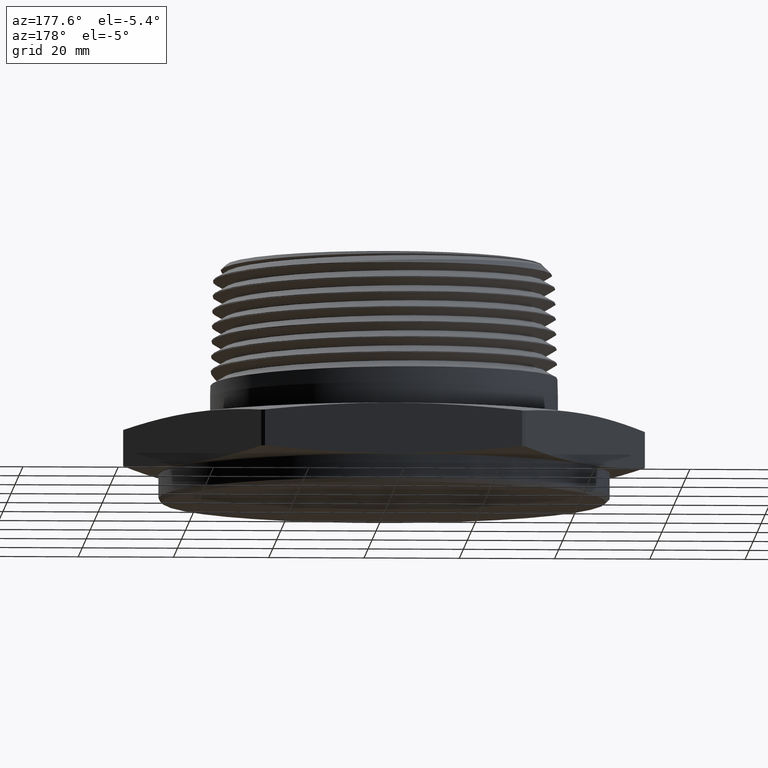
[diagram: clean part render]
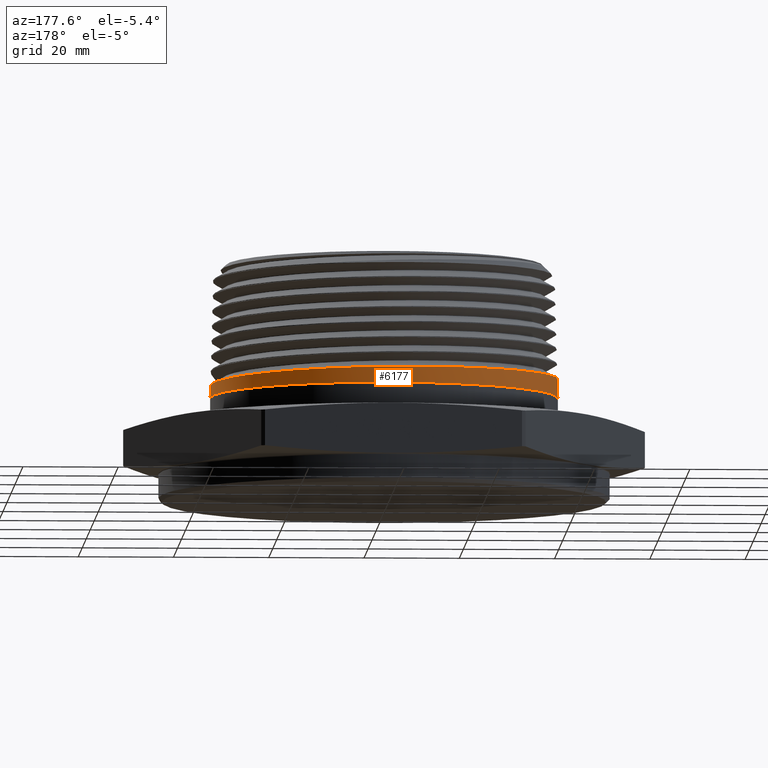
[diagram: same view with one face highlighted and labeled with its STEP entity id]
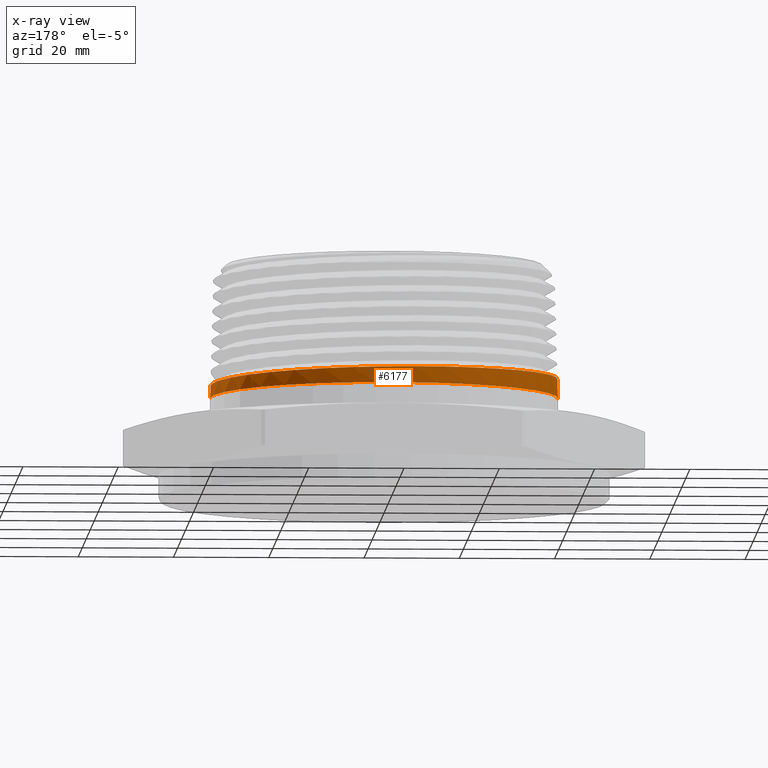
[diagram: x-ray of the same camera — body ghosted, the highlighted face saturated]
A machine part, auxiliary view. The second image highlights one B-rep face of the part: STEP entity #6177.
The next image is the same camera in x-ray: the body ghosted, the highlighted face saturated — about 0% of this face is hidden behind the body in this view.
In plain terms, the highlighted conical surface has half-angle 1.47 deg.
Its self-contained STEP definition (entity closure, byte-faithful):
#826 = B_SPLINE_CURVE_WITH_KNOTS ( 'NONE', 3,
 ( #6354, #6351, #6357, #6358, #6359, #6360, #6361, #6362, #6363, #6364, #6365, #6366, #6367, #6368, #6369, #6370, #6371, #6372, #6373, #6374, #6375, #6376, #6377, #6378, #6379, #6380, #6381, #6382, #6383, #6384, #6385, #6386, #6387, #6388, #6389, #6390, #6391, #6392, #6393, #6394, #6395, #6396, #6397, #6398, #6399, #6400, #6401, #6402, #6403, #6404, #6405, #6406, #6407, #6408, #6409, #6410, #6411, #6412, #6413, #6414, #6415, #6416, #6417, #6418 ),
 .UNSPECIFIED., .F., .F.,
 ( 4, 2, 2, 2, 2, 2, 2, 2, 2, 2, 2, 2, 2, 2, 2, 2, 2, 2, 2, 2, 2, 2, 2, 2, 2, 2, 2, 2, 2, 2, 2, 4 ),
 ( 1.526168335811242300, 1.533364398320368200, 1.535163413947649500, 1.536962429574930900, 1.540560460829493800, 1.544158492084056800, 1.545957507711338100, 1.547756523338619700, 1.554952585847745300, 1.558550617102308200, 1.560349632729589800, 1.562148648356871200, 1.569344710865997000, 1.571143726493278400, 1.572942742120560000, 1.576540773375122700, 1.583736835884248500, 1.585535851511530100, 1.587334867138811400, 1.590932898393374400, 1.594530929647937300, 1.598128960902500200, 1.605325023411626100, 1.608923054666189000, 1.612521085920751900, 1.619717148429877600, 1.623315179684440500, 1.626913210939003400, 1.630511242193566400, 1.632310257820847900, 1.634109273448129300, 1.641305335957255100 ),
 .UNSPECIFIED. ) ;
#1208 = EDGE_LOOP ( 'NONE', ( #6811, #6812, #6813, #6814 ) ) ;
#1427 = CARTESIAN_POINT ( 'NONE',  ( 0.0000000000000000000, 0.0000000000000000000, 0.6297337689372655100 ) ) ;
#1428 = DIRECTION ( 'NONE',  ( 0.0000000000000000000, 0.0000000000000000000, 1.000000000000000000 ) ) ;
#1429 = DIRECTION ( 'NONE',  ( -1.000000000000000000, 0.0000000000000000000, 0.0000000000000000000 ) ) ;
#1969 = LINE ( 'NONE', #6327, #1971 ) ;
#1971 = VECTOR ( 'NONE', #6352, 39.37007874015748100 ) ;
#1972 = LINE ( 'NONE', #6328, #1974 ) ;
#1974 = VECTOR ( 'NONE', #6353, 39.37007874015748100 ) ;
#2048 = CIRCLE ( 'NONE', #5655, 1.437500000000000000 ) ;
#2105 = VERTEX_POINT ( 'NONE', #2108 ) ;
#2106 = VERTEX_POINT ( 'NONE', #2109 ) ;
#2108 = CARTESIAN_POINT ( 'NONE',  ( 1.437500000000000000, 1.760429773774320200E-016, 0.6297337689372655100 ) ) ;
#2109 = CARTESIAN_POINT ( 'NONE',  ( -1.437500000000000000, 0.0000000000000000000, 0.6297337689372655100 ) ) ;
#2656 = FACE_OUTER_BOUND ( 'NONE', #1208, .T. ) ;
#2661 = CONICAL_SURFACE ( 'NONE', #5581, 1.442132072348257100, 0.02565634000430878200 ) ;
#4869 = VERTEX_POINT ( 'NONE', #6737 ) ;
#4870 = VERTEX_POINT ( 'NONE', #6724 ) ;
#5581 = AXIS2_PLACEMENT_3D ( 'NONE', #5687, #5688, #5686 ) ;
#5655 = AXIS2_PLACEMENT_3D ( 'NONE', #1427, #1428, #1429 ) ;
#5686 = DIRECTION ( 'NONE',  ( -1.000000000000000000, 0.0000000000000000000, 0.0000000000000000000 ) ) ;
#5687 = CARTESIAN_POINT ( 'NONE',  ( 0.0000000000000000000, 0.0000000000000000000, 0.4492303942382361300 ) ) ;
#5688 = DIRECTION ( 'NONE',  ( -0.0000000000000000000, -0.0000000000000000000, -1.000000000000000000 ) ) ;
#6177 = ADVANCED_FACE ( 'NONE', ( #2656 ), #2661, .T. ) ;
#6327 = CARTESIAN_POINT ( 'NONE',  ( -1.442132072348257100, 0.0000000000000000000, 0.4492303942382361300 ) ) ;
#6328 = CARTESIAN_POINT ( 'NONE',  ( 1.442132072348257100, 1.766102426349032300E-016, 0.4492303942382361300 ) ) ;
#6351 = CARTESIAN_POINT ( 'NONE',  ( -1.433348913474655800, 0.09358881222637180400, 0.7914940071541997100 ) ) ;
#6352 = DIRECTION ( 'NONE',  ( -0.02565352539212719900, 0.0000000000000000000, -0.9996708941621514900 ) ) ;
#6353 = DIRECTION ( 'NONE',  ( 0.02565352539212719900, 3.141650775831391900E-018, -0.9996708941621514900 ) ) ;
#6354 = CARTESIAN_POINT ( 'NONE',  ( -1.433315578335900800, 2.615044975489792300E-016, 0.7927930164504507500 ) ) ;
#6357 = CARTESIAN_POINT ( 'NONE',  ( -1.424303764361715100, 0.1865884221328335300, 0.7902033112709023800 ) ) ;
#6358 = CARTESIAN_POINT ( 'NONE',  ( -1.401428710909767400, 0.3020866834871985800, 0.7885692768749762400 ) ) ;
#6359 = CARTESIAN_POINT ( 'NONE',  ( -1.396254915519301600, 0.3252069221689006300, 0.7882395349471618100 ) ) ;
#6360 = CARTESIAN_POINT ( 'NONE',  ( -1.384788883911081800, 0.3710734057657568700, 0.7875817363886792300 ) ) ;
#6361 = CARTESIAN_POINT ( 'NONE',  ( -1.378511409037782800, 0.3937750741213382800, 0.7872543337545421200 ) ) ;
#6362 = CARTESIAN_POINT ( 'NONE',  ( -1.358077503797662700, 0.4611989260151166900, 0.7862765715504176400 ) ) ;
#6363 = CARTESIAN_POINT ( 'NONE',  ( -1.342323361612330000, 0.5052415710451371200, 0.7856314188529273100 ) ) ;
#6364 = CARTESIAN_POINT ( 'NONE',  ( -1.306625863972456200, 0.5915448108922014600, 0.7843353108104831300 ) ) ;
#6365 = CARTESIAN_POINT ( 'NONE',  ( -1.286682454266544900, 0.6338053823418810000, 0.7836843362914982500 ) ) ;
#6366 = CARTESIAN_POINT ( 'NONE',  ( -1.253589048926013100, 0.6958443024076442800, 0.7827085278102503500 ) ) ;
#6367 = CARTESIAN_POINT ( 'NONE',  ( -1.242027266390192800, 0.7162982200283705100, 0.7823831704202717200 ) ) ;
#6368 = CARTESIAN_POINT ( 'NONE',  ( -1.217824627236998400, 0.7567470233081510200, 0.7817306681137585800 ) ) ;
#6369 = CARTESIAN_POINT ( 'NONE',  ( -1.205145945475601900, 0.7767963070402039700, 0.7814026056886205200 ) ) ;
#6370 = CARTESIAN_POINT ( 'NONE',  ( -1.139583011880325600, 0.8750005233933982900, 0.7797640292120103800 ) ) ;
#6371 = CARTESIAN_POINT ( 'NONE',  ( -1.080223419649522800, 0.9472612989382275300, 0.7784725592069493500 ) ) ;
#6372 = CARTESIAN_POINT ( 'NONE',  ( -0.9811397266060488700, 1.046489378050620100, 0.7765268460352091600 ) ) ;
#6373 = CARTESIAN_POINT ( 'NONE',  ( -0.9464257182737150200, 1.078027160122034400, 0.7758735741902792500 ) ) ;
#6374 = CARTESIAN_POINT ( 'NONE',  ( -0.8917539541350104600, 1.122961256973738600, 0.7748916081684903400 ) ) ;
#6375 = CARTESIAN_POINT ( 'NONE',  ( -0.8730521850867342100, 1.137572577144758700, 0.7745630188889305300 ) ) ;
#6376 = CARTESIAN_POINT ( 'NONE',  ( -0.8351609484057340700, 1.165695387756366500, 0.7739099134539746400 ) ) ;
#6377 = CARTESIAN_POINT ( 'NONE',  ( -0.8159365065030198500, 1.179238960811406000, 0.7735847337594244900 ) ) ;
#6378 = CARTESIAN_POINT ( 'NONE',  ( -0.7184449665816555800, 1.244413464562286400, 0.7719575685932380500 ) ) ;
#6379 = CARTESIAN_POINT ( 'NONE',  ( -0.6361084886366896700, 1.288486501977394300, 0.7706679919758426800 ) ) ;
#6380 = CARTESIAN_POINT ( 'NONE',  ( -0.5277516924529096500, 1.333480418639194200, 0.7690402919906692600 ) ) ;
#6381 = CARTESIAN_POINT ( 'NONE',  ( -0.5058061103113206100, 1.341969820433918300, 0.7687129177817503300 ) ) ;
#6382 = CARTESIAN_POINT ( 'NONE',  ( -0.4613561889355765600, 1.357910757058703700, 0.7680561250930809700 ) ) ;
#6383 = CARTESIAN_POINT ( 'NONE',  ( -0.4388318939867778000, 1.365364486861917900, 0.7677264411735356100 ) ) ;
#6384 = CARTESIAN_POINT ( 'NONE',  ( -0.3711666258061965800, 1.385917806041129200, 0.7667453271605184600 ) ) ;
#6385 = CARTESIAN_POINT ( 'NONE',  ( -0.3256912838908700400, 1.397306999596000400, 0.7660989708038450400 ) ) ;
#6386 = CARTESIAN_POINT ( 'NONE',  ( -0.1881987833315690300, 1.424716764124643700, 0.7641539979445105500 ) ) ;
#6387 = CARTESIAN_POINT ( 'NONE',  ( -0.09512523033737586800, 1.434044557316146000, 0.7628625406388460700 ) ) ;
#6388 = CARTESIAN_POINT ( 'NONE',  ( 0.02304224158956008600, 1.434135338887810200, 0.7612233875939487000 ) ) ;
#6389 = CARTESIAN_POINT ( 'NONE',  ( 0.04673577840428296000, 1.433565952572685200, 0.7608936874103465800 ) ) ;
#6390 = CARTESIAN_POINT ( 'NONE',  ( 0.09378557367910110600, 1.431274976100628000, 0.7602386079135199400 ) ) ;
#6391 = CARTESIAN_POINT ( 'NONE',  ( 0.1172052921400035400, 1.429554080512793100, 0.7599123465064590000 ) ) ;
#6392 = CARTESIAN_POINT ( 'NONE',  ( 0.1871538940598959100, 1.422692434624748500, 0.7589373828551025900 ) ) ;
#6393 = CARTESIAN_POINT ( 'NONE',  ( 0.2333729611254734000, 1.415856697226660600, 0.7582932699529926200 ) ) ;
#6394 = CARTESIAN_POINT ( 'NONE',  ( 0.3249925024377129400, 1.397708252912106300, 0.7569977771445668400 ) ) ;
#6395 = CARTESIAN_POINT ( 'NONE',  ( 0.3703929938832989400, 1.386395648294505500, 0.7563462911358812500 ) ) ;
#6396 = CARTESIAN_POINT ( 'NONE',  ( 0.4603599935131733000, 1.359208780246030900, 0.7550425899775998800 ) ) ;
#6397 = CARTESIAN_POINT ( 'NONE',  ( 0.5051467711582436900, 1.343228173222285000, 0.7543870684521716300 ) ) ;
#6398 = CARTESIAN_POINT ( 'NONE',  ( 0.6356315430401919800, 1.289262613558189900, 0.7524285817431218800 ) ) ;
#6399 = CARTESIAN_POINT ( 'NONE',  ( 0.7180390703502920200, 1.245248123960342100, 0.7511388659865109200 ) ) ;
#6400 = CARTESIAN_POINT ( 'NONE',  ( 0.8348900147179151300, 1.167369676306376800, 0.7491914824792537100 ) ) ;
#6401 = CARTESIAN_POINT ( 'NONE',  ( 0.8727056591909064800, 1.139420234513127000, 0.7485368071202634900 ) ) ;
#6402 = CARTESIAN_POINT ( 'NONE',  ( 0.9459860995261982800, 1.079398286227635700, 0.7472230466740805700 ) ) ;
#6403 = CARTESIAN_POINT ( 'NONE',  ( 0.9808486564317408000, 1.047817840210580900, 0.7465747092425990500 ) ) ;
#6404 = CARTESIAN_POINT ( 'NONE',  ( 1.080225203869977800, 0.9485870329254410000, 0.7446271869131783100 ) ) ;
#6405 = CARTESIAN_POINT ( 'NONE',  ( 1.139605921547685700, 0.8764647321302129200, 0.7433376187008289300 ) ) ;
#6406 = CARTESIAN_POINT ( 'NONE',  ( 1.218206958751414600, 0.7591863469097368500, 0.7413800700156140100 ) ) ;
#6407 = CARTESIAN_POINT ( 'NONE',  ( 1.242699869694622800, 0.7184233329913083400, 0.7407180841442400100 ) ) ;
#6408 = CARTESIAN_POINT ( 'NONE',  ( 1.287085336225574100, 0.6355646068608991100, 0.7394145804027416600 ) ) ;
#6409 = CARTESIAN_POINT ( 'NONE',  ( 1.307122768096911500, 0.5932795489866429200, 0.7387697074817438600 ) ) ;
#6410 = CARTESIAN_POINT ( 'NONE',  ( 1.342968959481960000, 0.5070308524334379300, 0.7374747146610649600 ) ) ;
#6411 = CARTESIAN_POINT ( 'NONE',  ( 1.358777631087267000, 0.4630671817667073000, 0.7368244006405160200 ) ) ;
#6412 = CARTESIAN_POINT ( 'NONE',  ( 1.379288167407980700, 0.3958503741423746200, 0.7358498718116878200 ) ) ;
#6413 = CARTESIAN_POINT ( 'NONE',  ( 1.385590328421380200, 0.3732325180778324800, 0.7355249901305606100 ) ) ;
#6414 = CARTESIAN_POINT ( 'NONE',  ( 1.397108374824264800, 0.3275656110072773200, 0.7348735746660521900 ) ) ;
#6415 = CARTESIAN_POINT ( 'NONE',  ( 1.402333482201562500, 0.3044684378090061800, 0.7345463647729427700 ) ) ;
#6416 = CARTESIAN_POINT ( 'NONE',  ( 1.425561923731699400, 0.1884900744133270700, 0.7329065501121225800 ) ) ;
#6417 = CARTESIAN_POINT ( 'NONE',  ( 1.434885746383993900, 0.09473346264841005200, 0.7316064437424946200 ) ) ;
#6418 = CARTESIAN_POINT ( 'NONE',  ( 1.434919451516936800, 2.811631221335187800E-015, 0.7302930164504469700 ) ) ;
#6538 = EDGE_CURVE ( 'NONE', #4869, #2106, #1969, .T. ) ;
#6539 = EDGE_CURVE ( 'NONE', #4870, #2105, #1972, .T. ) ;
#6540 = EDGE_CURVE ( 'NONE', #4869, #4870, #826, .T. ) ;
#6630 = EDGE_CURVE ( 'NONE', #2105, #2106, #2048, .T. ) ;
#6724 = CARTESIAN_POINT ( 'NONE',  ( 1.434919451516936800, 2.811631221335187800E-015, 0.7302930164504469700 ) ) ;
#6737 = CARTESIAN_POINT ( 'NONE',  ( -1.433315578335900800, 2.615044975489792300E-016, 0.7927930164504507500 ) ) ;
#6811 = ORIENTED_EDGE ( 'NONE', *, *, #6540, .T. ) ;
#6812 = ORIENTED_EDGE ( 'NONE', *, *, #6539, .T. ) ;
#6813 = ORIENTED_EDGE ( 'NONE', *, *, #6630, .T. ) ;
#6814 = ORIENTED_EDGE ( 'NONE', *, *, #6538, .F. ) ;